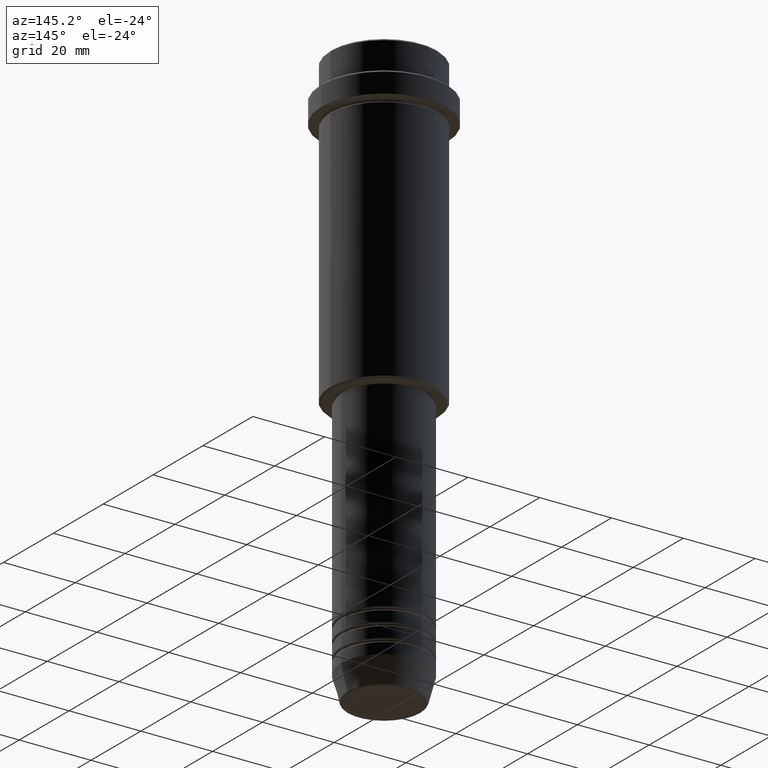
[diagram: clean part render]
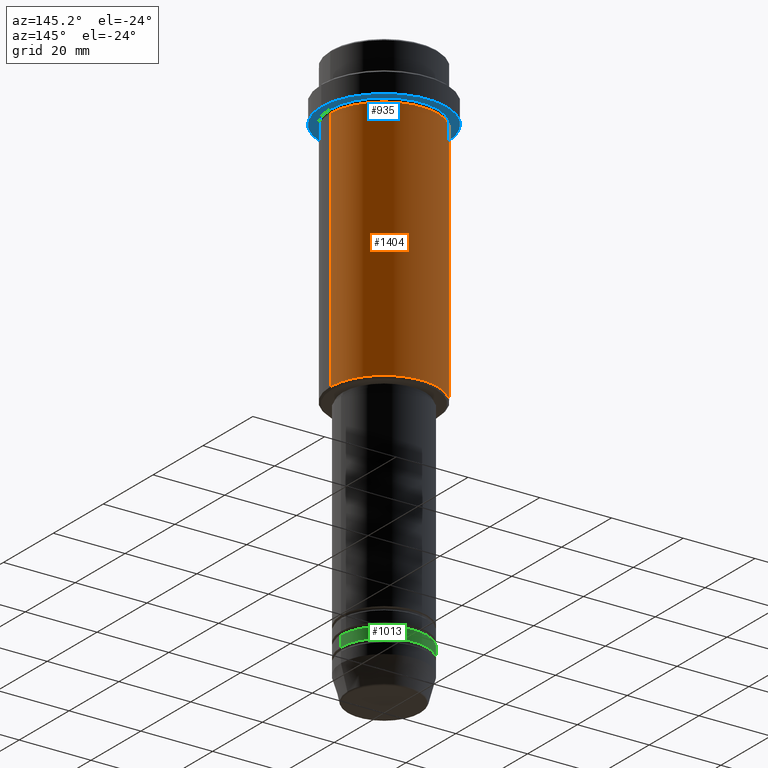
[diagram: same view with three faces highlighted in distinct colors, each labeled with its STEP entity id]
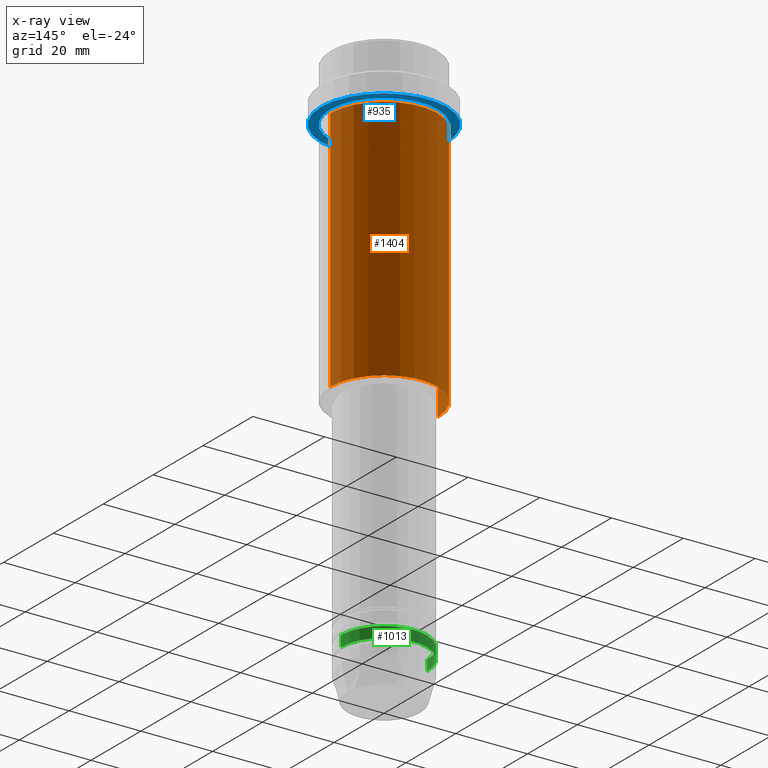
[diagram: x-ray of the same camera — body ghosted, the three highlighted faces saturated]
A machine part, auxiliary view with three faces highlighted in distinct colors.
The next image is the same camera in x-ray (body ghosted, the three faces saturated) — at least one of them is partly hidden behind the body in this view.
Their STEP definitions:

[orange] entity #1404 — the highlighted cylindrical surface (partial cylindrical patch) has radius 15 mm, axis along (-0, -0, 1).
#3 = CARTESIAN_POINT ( 'NONE',  ( 0.000000000000000000, 0.000000000000000000, -16.00000000000000000 ) ) ;
#19 = VECTOR ( 'NONE', #388, 1000.000000000000000 ) ;
#95 = EDGE_CURVE ( 'NONE', #349, #546, #937, .T. ) ;
#111 = CIRCLE ( 'NONE', #853, 15.00000000000000000 ) ;
#113 = DIRECTION ( 'NONE',  ( 1.000000000000000000, 0.000000000000000000, 0.000000000000000000 ) ) ;
#236 = VERTEX_POINT ( 'NONE', #441 ) ;
#246 = CARTESIAN_POINT ( 'NONE',  ( 15.00000000000000000, 0.000000000000000000, -84.49999999999998579 ) ) ;
#267 = CARTESIAN_POINT ( 'NONE',  ( -15.00000000000000000, 1.836970198721029589E-15, -84.49999999999998579 ) ) ;
#279 = DIRECTION ( 'NONE',  ( 1.000000000000000000, 0.000000000000000000, 0.000000000000000000 ) ) ;
#349 = VERTEX_POINT ( 'NONE', #267 ) ;
#354 = EDGE_LOOP ( 'NONE', ( #1230, #667, #762, #1110 ) ) ;
#388 = DIRECTION ( 'NONE',  ( -0.000000000000000000, -0.000000000000000000, 1.000000000000000000 ) ) ;
#394 = VERTEX_POINT ( 'NONE', #246 ) ;
#399 = AXIS2_PLACEMENT_3D ( 'NONE', #1147, #1249, #279 ) ;
#406 = LINE ( 'NONE', #1378, #19 ) ;
#441 = CARTESIAN_POINT ( 'NONE',  ( 15.00000000000000178, 0.000000000000000000, -16.00000000000000000 ) ) ;
#450 = CARTESIAN_POINT ( 'NONE',  ( -15.00000000000000000, 1.836970198721029589E-15, 0.000000000000000000 ) ) ;
#512 = CIRCLE ( 'NONE', #1345, 15.00000000000000178 ) ;
#546 = VERTEX_POINT ( 'NONE', #720 ) ;
#567 = EDGE_CURVE ( 'NONE', #394, #236, #406, .T. ) ;
#662 = EDGE_CURVE ( 'NONE', #236, #546, #512, .T. ) ;
#667 = ORIENTED_EDGE ( 'NONE', *, *, #95, .T. ) ;
#668 = VECTOR ( 'NONE', #1003, 1000.000000000000000 ) ;
#720 = CARTESIAN_POINT ( 'NONE',  ( -15.00000000000000355, 1.836970198721029983E-15, -16.00000000000000000 ) ) ;
#740 = CARTESIAN_POINT ( 'NONE',  ( 0.000000000000000000, 0.000000000000000000, -84.49999999999998579 ) ) ;
#762 = ORIENTED_EDGE ( 'NONE', *, *, #662, .F. ) ;
#773 = EDGE_CURVE ( 'NONE', #394, #349, #111, .T. ) ;
#799 = DIRECTION ( 'NONE',  ( -1.000000000000000000, 0.000000000000000000, 0.000000000000000000 ) ) ;
#850 = DIRECTION ( 'NONE',  ( -0.000000000000000000, -0.000000000000000000, 1.000000000000000000 ) ) ;
#853 = AXIS2_PLACEMENT_3D ( 'NONE', #740, #1093, #799 ) ;
#937 = LINE ( 'NONE', #450, #668 ) ;
#940 = CYLINDRICAL_SURFACE ( 'NONE', #399, 15.00000000000000000 ) ;
#1003 = DIRECTION ( 'NONE',  ( -0.000000000000000000, -0.000000000000000000, 1.000000000000000000 ) ) ;
#1093 = DIRECTION ( 'NONE',  ( -0.000000000000000000, -0.000000000000000000, 1.000000000000000000 ) ) ;
#1110 = ORIENTED_EDGE ( 'NONE', *, *, #567, .F. ) ;
#1147 = CARTESIAN_POINT ( 'NONE',  ( 0.000000000000000000, 0.000000000000000000, 0.000000000000000000 ) ) ;
#1230 = ORIENTED_EDGE ( 'NONE', *, *, #773, .T. ) ;
#1249 = DIRECTION ( 'NONE',  ( -0.000000000000000000, -0.000000000000000000, 1.000000000000000000 ) ) ;
#1260 = FACE_OUTER_BOUND ( 'NONE', #354, .T. ) ;
#1345 = AXIS2_PLACEMENT_3D ( 'NONE', #3, #850, #113 ) ;
#1378 = CARTESIAN_POINT ( 'NONE',  ( 15.00000000000000000, 0.000000000000000000, 0.000000000000000000 ) ) ;
#1404 = ADVANCED_FACE ( 'NONE', ( #1260 ), #940, .T. ) ;

[blue] entity #935 — the highlighted planar face has unit normal (0, 0, -1).
#10 = CARTESIAN_POINT ( 'NONE',  ( 0.000000000000000000, 0.000000000000000000, -15.00000000000000000 ) ) ;
#62 = DIRECTION ( 'NONE',  ( -1.000000000000000000, 0.000000000000000000, 0.000000000000000000 ) ) ;
#65 = CIRCLE ( 'NONE', #381, 17.50000000000000000 ) ;
#129 = CARTESIAN_POINT ( 'NONE',  ( -14.99999999999999467, 0.000000000000000000, -15.00000000000000000 ) ) ;
#172 = VERTEX_POINT ( 'NONE', #129 ) ;
#183 = EDGE_CURVE ( 'NONE', #953, #208, #620, .T. ) ;
#208 = VERTEX_POINT ( 'NONE', #1397 ) ;
#215 = DIRECTION ( 'NONE',  ( -0.000000000000000000, -0.000000000000000000, 1.000000000000000000 ) ) ;
#262 = EDGE_LOOP ( 'NONE', ( #528, #269 ) ) ;
#269 = ORIENTED_EDGE ( 'NONE', *, *, #183, .F. ) ;
#280 = FACE_BOUND ( 'NONE', #797, .T. ) ;
#285 = DIRECTION ( 'NONE',  ( -1.000000000000000000, 0.000000000000000000, -0.000000000000000000 ) ) ;
#293 = DIRECTION ( 'NONE',  ( -0.000000000000000000, -0.000000000000000000, 1.000000000000000000 ) ) ;
#309 = EDGE_CURVE ( 'NONE', #208, #953, #65, .T. ) ;
#375 = DIRECTION ( 'NONE',  ( 1.000000000000000000, 0.000000000000000000, 0.000000000000000000 ) ) ;
#381 = AXIS2_PLACEMENT_3D ( 'NONE', #473, #1109, #375 ) ;
#410 = DIRECTION ( 'NONE',  ( -1.000000000000000000, 0.000000000000000000, 0.000000000000000000 ) ) ;
#444 = AXIS2_PLACEMENT_3D ( 'NONE', #10, #660, #545 ) ;
#459 = EDGE_CURVE ( 'NONE', #172, #901, #1062, .T. ) ;
#473 = CARTESIAN_POINT ( 'NONE',  ( 0.000000000000000000, 0.000000000000000000, -15.00000000000000000 ) ) ;
#505 = CARTESIAN_POINT ( 'NONE',  ( 0.000000000000000000, 17.50000000000000000, -15.00000000000000000 ) ) ;
#528 = ORIENTED_EDGE ( 'NONE', *, *, #309, .F. ) ;
#545 = DIRECTION ( 'NONE',  ( 1.000000000000000000, 0.000000000000000000, 0.000000000000000000 ) ) ;
#603 = CARTESIAN_POINT ( 'NONE',  ( -17.50000000000000000, 2.143131898507868248E-15, -15.00000000000000000 ) ) ;
#620 = CIRCLE ( 'NONE', #444, 17.50000000000000000 ) ;
#636 = EDGE_CURVE ( 'NONE', #901, #172, #949, .T. ) ;
#660 = DIRECTION ( 'NONE',  ( -0.000000000000000000, -0.000000000000000000, 1.000000000000000000 ) ) ;
#704 = DIRECTION ( 'NONE',  ( 0.000000000000000000, 0.000000000000000000, -1.000000000000000000 ) ) ;
#797 = EDGE_LOOP ( 'NONE', ( #1054, #1286 ) ) ;
#901 = VERTEX_POINT ( 'NONE', #1142 ) ;
#935 = ADVANCED_FACE ( 'NONE', ( #280, #1046 ), #1381, .T. ) ;
#949 = CIRCLE ( 'NONE', #1172, 14.99999999999999467 ) ;
#953 = VERTEX_POINT ( 'NONE', #603 ) ;
#1022 = AXIS2_PLACEMENT_3D ( 'NONE', #1040, #293, #62 ) ;
#1040 = CARTESIAN_POINT ( 'NONE',  ( 0.000000000000000000, 0.000000000000000000, -15.00000000000000000 ) ) ;
#1046 = FACE_OUTER_BOUND ( 'NONE', #262, .T. ) ;
#1054 = ORIENTED_EDGE ( 'NONE', *, *, #459, .T. ) ;
#1062 = CIRCLE ( 'NONE', #1022, 14.99999999999999467 ) ;
#1109 = DIRECTION ( 'NONE',  ( -0.000000000000000000, -0.000000000000000000, 1.000000000000000000 ) ) ;
#1142 = CARTESIAN_POINT ( 'NONE',  ( 14.99999999999999467, 1.836970198721029194E-15, -15.00000000000000000 ) ) ;
#1172 = AXIS2_PLACEMENT_3D ( 'NONE', #1401, #215, #410 ) ;
#1286 = ORIENTED_EDGE ( 'NONE', *, *, #636, .T. ) ;
#1299 = AXIS2_PLACEMENT_3D ( 'NONE', #505, #704, #285 ) ;
#1381 = PLANE ( 'NONE',  #1299 ) ;
#1397 = CARTESIAN_POINT ( 'NONE',  ( 17.50000000000000000, 0.000000000000000000, -15.00000000000000000 ) ) ;
#1401 = CARTESIAN_POINT ( 'NONE',  ( 0.000000000000000000, 0.000000000000000000, -15.00000000000000000 ) ) ;

[green] entity #1013 — the highlighted cylindrical surface (partial cylindrical patch) has radius 12 mm, axis along (-0, -0, 1).
#12 = VERTEX_POINT ( 'NONE', #639 ) ;
#55 = VERTEX_POINT ( 'NONE', #226 ) ;
#75 = DIRECTION ( 'NONE',  ( 1.000000000000000000, 0.000000000000000000, 0.000000000000000000 ) ) ;
#146 = DIRECTION ( 'NONE',  ( 1.000000000000000000, 0.000000000000000000, 0.000000000000000000 ) ) ;
#149 = DIRECTION ( 'NONE',  ( 1.000000000000000000, 0.000000000000000000, 0.000000000000000000 ) ) ;
#158 = AXIS2_PLACEMENT_3D ( 'NONE', #229, #651, #149 ) ;
#175 = CYLINDRICAL_SURFACE ( 'NONE', #472, 12.00000000000000000 ) ;
#226 = CARTESIAN_POINT ( 'NONE',  ( 12.00000000000000000, 0.000000000000000000, -145.9999999999999147 ) ) ;
#229 = CARTESIAN_POINT ( 'NONE',  ( 0.000000000000000000, 0.000000000000000000, -145.9999999999999147 ) ) ;
#244 = CARTESIAN_POINT ( 'NONE',  ( 0.000000000000000000, 0.000000000000000000, -148.9999999999999147 ) ) ;
#249 = EDGE_CURVE ( 'NONE', #402, #12, #411, .T. ) ;
#338 = CIRCLE ( 'NONE', #158, 12.00000000000000000 ) ;
#374 = FACE_OUTER_BOUND ( 'NONE', #680, .T. ) ;
#402 = VERTEX_POINT ( 'NONE', #1219 ) ;
#411 = LINE ( 'NONE', #841, #1265 ) ;
#455 = EDGE_CURVE ( 'NONE', #817, #55, #1152, .T. ) ;
#472 = AXIS2_PLACEMENT_3D ( 'NONE', #1052, #1038, #75 ) ;
#532 = DIRECTION ( 'NONE',  ( -0.000000000000000000, -0.000000000000000000, 1.000000000000000000 ) ) ;
#623 = AXIS2_PLACEMENT_3D ( 'NONE', #244, #884, #146 ) ;
#639 = CARTESIAN_POINT ( 'NONE',  ( -12.00000000000000000, 1.469576158976823947E-15, -145.9999999999999147 ) ) ;
#651 = DIRECTION ( 'NONE',  ( -0.000000000000000000, -0.000000000000000000, 1.000000000000000000 ) ) ;
#680 = EDGE_LOOP ( 'NONE', ( #848, #1274, #1007, #854 ) ) ;
#695 = VECTOR ( 'NONE', #1156, 1000.000000000000000 ) ;
#782 = EDGE_CURVE ( 'NONE', #817, #402, #1149, .T. ) ;
#817 = VERTEX_POINT ( 'NONE', #1004 ) ;
#841 = CARTESIAN_POINT ( 'NONE',  ( -12.00000000000000000, 1.469576158976823947E-15, 0.000000000000000000 ) ) ;
#848 = ORIENTED_EDGE ( 'NONE', *, *, #782, .T. ) ;
#854 = ORIENTED_EDGE ( 'NONE', *, *, #455, .F. ) ;
#884 = DIRECTION ( 'NONE',  ( -0.000000000000000000, -0.000000000000000000, 1.000000000000000000 ) ) ;
#933 = CARTESIAN_POINT ( 'NONE',  ( 12.00000000000000000, 0.000000000000000000, 0.000000000000000000 ) ) ;
#1004 = CARTESIAN_POINT ( 'NONE',  ( 12.00000000000000000, 0.000000000000000000, -148.9999999999999147 ) ) ;
#1007 = ORIENTED_EDGE ( 'NONE', *, *, #1168, .F. ) ;
#1013 = ADVANCED_FACE ( 'NONE', ( #374 ), #175, .T. ) ;
#1038 = DIRECTION ( 'NONE',  ( -0.000000000000000000, -0.000000000000000000, 1.000000000000000000 ) ) ;
#1052 = CARTESIAN_POINT ( 'NONE',  ( 0.000000000000000000, 0.000000000000000000, 0.000000000000000000 ) ) ;
#1149 = CIRCLE ( 'NONE', #623, 12.00000000000000000 ) ;
#1152 = LINE ( 'NONE', #933, #695 ) ;
#1156 = DIRECTION ( 'NONE',  ( -0.000000000000000000, -0.000000000000000000, 1.000000000000000000 ) ) ;
#1168 = EDGE_CURVE ( 'NONE', #55, #12, #338, .T. ) ;
#1219 = CARTESIAN_POINT ( 'NONE',  ( -12.00000000000000000, 1.469576158976823947E-15, -148.9999999999999147 ) ) ;
#1265 = VECTOR ( 'NONE', #532, 1000.000000000000000 ) ;
#1274 = ORIENTED_EDGE ( 'NONE', *, *, #249, .T. ) ;